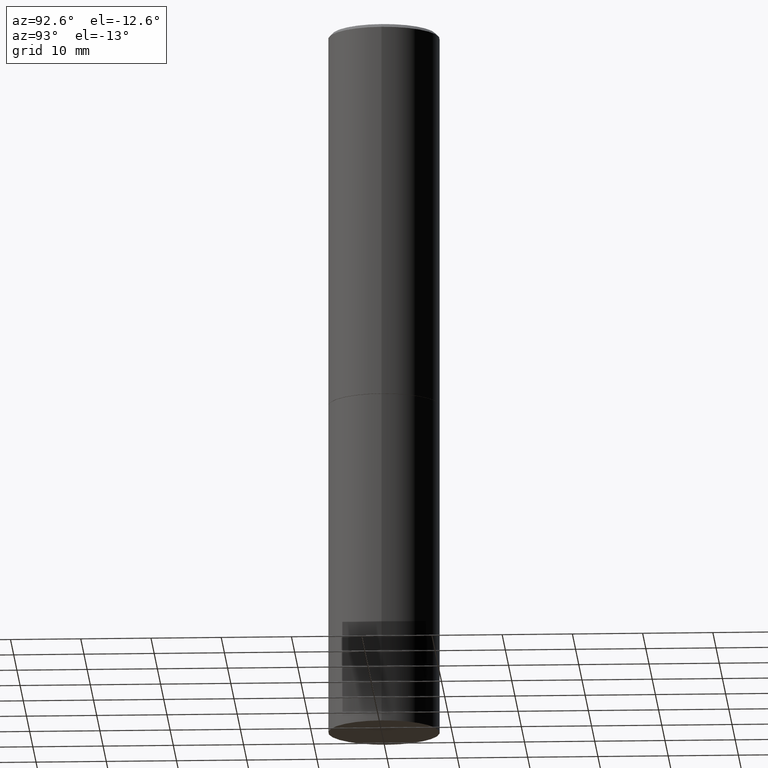
[diagram: clean part render]
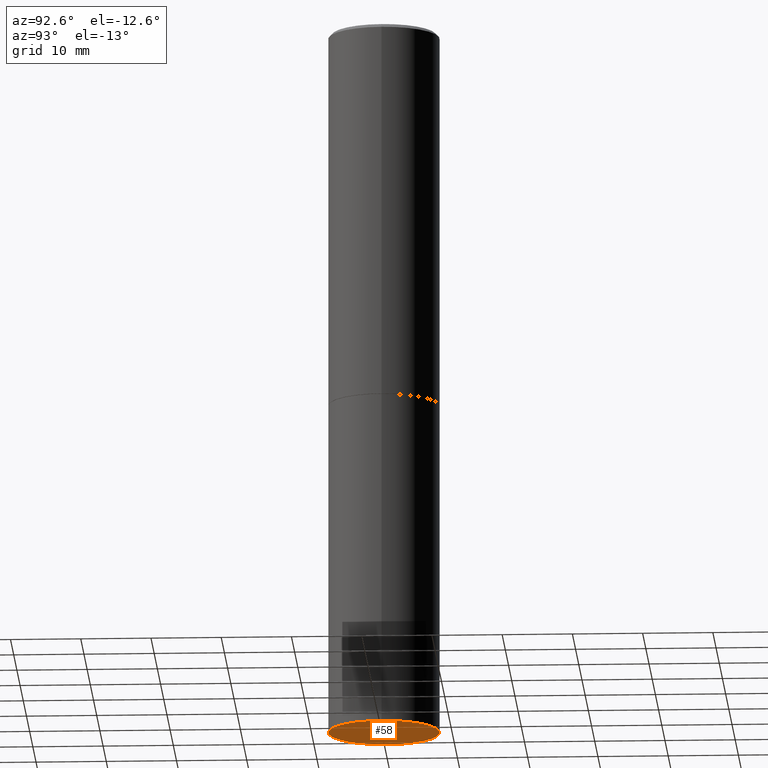
[diagram: same view with one face highlighted and labeled with its STEP entity id]
A machine part, auxiliary view. The second image highlights one B-rep face of the part: STEP entity #58.
In plain terms, the highlighted planar face has unit normal (0, -0, -1).
Its self-contained STEP definition (entity closure, byte-faithful):
#6 = CARTESIAN_POINT ( 'NONE',  ( 9.781875224740546387E-29, -1.396592535537258233E-14, -4.000000000000000000 ) ) ;
#7 = DIRECTION ( 'NONE',  ( -2.445468806185136597E-29, 3.491481338843145583E-15, 1.000000000000000000 ) ) ;
#9 = DIRECTION ( 'NONE',  ( -2.445468806185136597E-29, 3.491481338843145583E-15, 1.000000000000000000 ) ) ;
#16 = CARTESIAN_POINT ( 'NONE',  ( 9.781875224740546387E-29, -1.396592535537258233E-14, -4.000000000000000000 ) ) ;
#42 = VERTEX_POINT ( 'NONE', #53 ) ;
#51 = AXIS2_PLACEMENT_3D ( 'NONE', #222, #277, #308 ) ;
#53 = CARTESIAN_POINT ( 'NONE',  ( -0.3125000000000000000, -8.472215550956819896E-15, -4.000000000000000000 ) ) ;
#58 = ADVANCED_FACE ( 'NONE', ( #281 ), #114, .T. ) ;
#59 = CARTESIAN_POINT ( 'NONE',  ( 0.3125000000000000000, -1.614810119214954068E-14, -4.000000000000000000 ) ) ;
#64 = DIRECTION ( 'NONE',  ( 1.000000000000000000, -6.982962677686269077E-15, 0.000000000000000000 ) ) ;
#109 = VERTEX_POINT ( 'NONE', #59 ) ;
#114 = PLANE ( 'NONE',  #51 ) ;
#130 = DIRECTION ( 'NONE',  ( 1.000000000000000000, -6.982962677686269077E-15, 0.000000000000000000 ) ) ;
#185 = ORIENTED_EDGE ( 'NONE', *, *, #231, .F. ) ;
#189 = CIRCLE ( 'NONE', #236, 0.3125000000000000000 ) ;
#199 = EDGE_CURVE ( 'NONE', #109, #42, #200, .T. ) ;
#200 = CIRCLE ( 'NONE', #340, 0.3125000000000000000 ) ;
#222 = CARTESIAN_POINT ( 'NONE',  ( 2.182175836777055771E-15, 0.3124999999999860667, -4.000000000000000888 ) ) ;
#231 = EDGE_CURVE ( 'NONE', #42, #109, #189, .T. ) ;
#236 = AXIS2_PLACEMENT_3D ( 'NONE', #16, #7, #130 ) ;
#277 = DIRECTION ( 'NONE',  ( 2.438088387897960049E-29, -3.491481338843145188E-15, -1.000000000000000000 ) ) ;
#281 = FACE_OUTER_BOUND ( 'NONE', #290, .T. ) ;
#290 = EDGE_LOOP ( 'NONE', ( #356, #185 ) ) ;
#308 = DIRECTION ( 'NONE',  ( -1.000000000000000000, 6.982962677686265922E-15, -4.876176775795935793E-29 ) ) ;
#340 = AXIS2_PLACEMENT_3D ( 'NONE', #6, #9, #64 ) ;
#356 = ORIENTED_EDGE ( 'NONE', *, *, #199, .F. ) ;